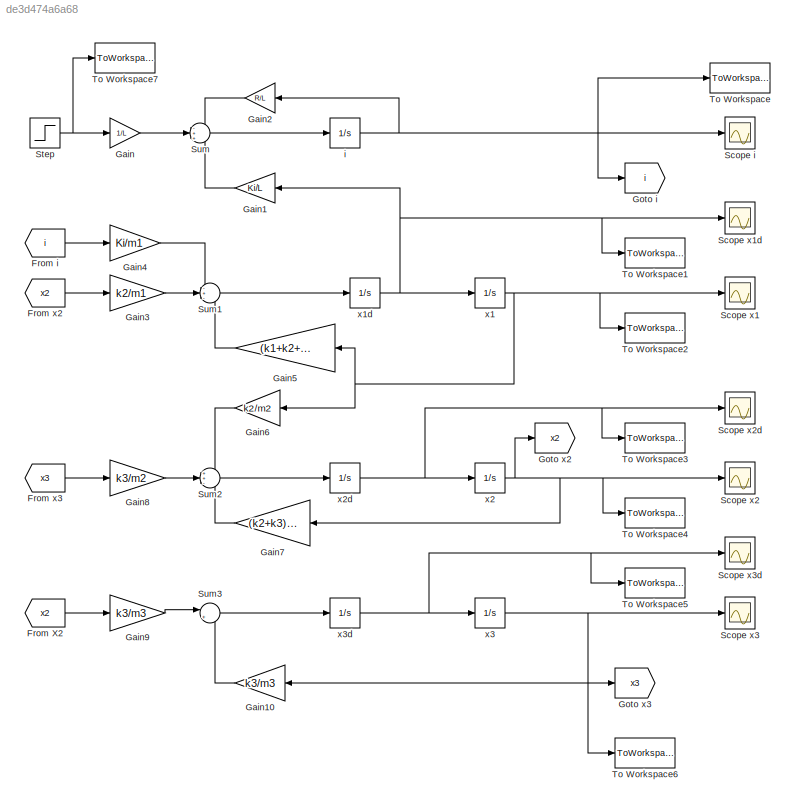
MODEL slx_de3d474a6a68
KIND model
CONFIG AbsTol = auto
CONFIG EnableMultiTasking = on
CONFIG FixedStep = auto
CONFIG MaxStep = 0.01
CONFIG MinStep = auto
CONFIG RelTol = 1e-3
CONFIG SampleTimeConstraint = Unconstrained
CONFIG Solver = ode45
CONFIG SolverName = ode45
CONFIG StartTime = 0.0
CONFIG StopTime = 5
BLOCK [From] From X2
  GotoTag = x2
BLOCK [From] From i
  GotoTag = i
BLOCK [From] From x2
  GotoTag = x2
BLOCK [From] From x3
  GotoTag = x3
BLOCK [Gain] Gain
  Gain = 1/L
BLOCK [Gain] Gain1
  Gain = Ki/L
BLOCK [Gain] Gain10
  Gain = k3/m3
BLOCK [Gain] Gain2
  Gain = R/L
BLOCK [Gain] Gain3
  Gain = k2/m1
BLOCK [Gain] Gain4
  Gain = Ki/m1
BLOCK [Gain] Gain5
  Gain = (k1+k2+Ks)/m1
BLOCK [Gain] Gain6
  Gain = k2/m2
BLOCK [Gain] Gain7
  Gain = (k2+k3)/m2
BLOCK [Gain] Gain8
  Gain = k3/m2
BLOCK [Gain] Gain9
  Gain = k3/m3
BLOCK [Goto] Goto i
  GotoTag = i
BLOCK [Goto] Goto x2
  GotoTag = x2
BLOCK [Goto] Goto x3
  GotoTag = x3
BLOCK [Scope] Scope i
  Floating = off
  NumInputPorts = 1
  Ports = [1]
  ScopeSpecificationString = Simulink.scopes.TimeScopeBlockCfg('CurrentConfiguration', extmgr.ConfigurationSet(extmgr.Configuration('Core','General UI',true),extmgr.Configuration('Core','Source UI',true),extmgr.Configuration('Sources','WiredSimulink',true,'DataLoggingSaveFormat','StructureWithTime','DataLoggingLimitDataPoints',true,'DataLoggingDecimation','1','DataLoggingDecimateData',true),extmgr.Configuration('Visuals','Tim...<+1639ch>
BLOCK [Scope] Scope x1
  Floating = off
  NumInputPorts = 1
  Ports = [1]
  ScopeSpecificationString = C++SS(StrPVP('Location','[188, 390, 512, 629]'),StrPVP('Open','off'),MxPVP('AxesTitles',54,'struct(''axes1'',''%<SignalLabel>'')'),MxPVP('ScopeGraphics',57,'struct(''FigureColor'',''[0.5 0.5 0.5]'',''AxesColor'',''[0 0 0]'',''AxesTickColor'',''[1 1 1]'',''LineColors'',''[1 1 0;1 0 1;0 1 1;1 0 0;0 1 0;0 0 1]'',''LineStyles'',''-|-|-|-|-|-'',''LineWidths'',''[0.5 0.5 0.5 0.5 0.5 0.5]'',''MarkerStyle...<+271ch>  <repeated x3 — deduplicated; at blocks: Scope x1, Scope x2, Scope x2d>
BLOCK [Scope] Scope x1d
  Floating = off
  NumInputPorts = 1
  Ports = [1]
  ScopeSpecificationString = C++SS(StrPVP('Location','[188, 390, 512, 629]'),StrPVP('Open','off'),StrPVP('ZoomMode','xonly'),MxPVP('AxesTitles',54,'struct(''axes1'',''%<SignalLabel>'')'),MxPVP('ScopeGraphics',57,'struct(''FigureColor'',''[0.5 0.5 0.5]'',''AxesColor'',''[0 0 0]'',''AxesTickColor'',''[1 1 1]'',''LineColors'',''[1 1 0;1 0 1;0 1 1;1 0 0;0 1 0;0 0 1]'',''LineStyles'',''-|-|-|-|-|-'',''LineWidths'',''[0.5 0.5 0.5 0...<+298ch>
BLOCK [Scope] Scope x2
  Floating = off
  NumInputPorts = 1
  Ports = [1]
BLOCK [Scope] Scope x2d
  Floating = off
  NumInputPorts = 1
  Ports = [1]
BLOCK [Scope] Scope x3
  Floating = off
  NumInputPorts = 1
  Ports = [1]
  ScopeSpecificationString = Simulink.scopes.TimeScopeBlockCfg('CurrentConfiguration', extmgr.ConfigurationSet(extmgr.Configuration('Core','General UI',true),extmgr.Configuration('Core','Source UI',true),extmgr.Configuration('Sources','WiredSimulink',true,'DataLoggingVariableName','ScopeData3','DataLoggingSaveFormat','StructureWithTime','DataLoggingLimitDataPoints',true,'DataLoggingDecimation','1','DataLoggingDecimateData',tr...<+911ch>
BLOCK [Scope] Scope x3d
  Floating = off
  NumInputPorts = 1
  Ports = [1]
  ScopeSpecificationString = C++SS(StrPVP('Location','[188, 390, 512, 629]'),StrPVP('Open','off'),StrPVP('ZoomMode','yonly'),MxPVP('AxesTitles',54,'struct(''axes1'',''%<SignalLabel>'')'),MxPVP('ScopeGraphics',57,'struct(''FigureColor'',''[0.5 0.5 0.5]'',''AxesColor'',''[0 0 0]'',''AxesTickColor'',''[1 1 1]'',''LineColors'',''[1 1 0;1 0 1;0 1 1;1 0 0;0 1 0;0 0 1]'',''LineStyles'',''-|-|-|-|-|-'',''LineWidths'',''[0.5 0.5 0.5 0...<+298ch>
BLOCK [Step] Step
  After = u_0
  SampleTime = 0
BLOCK [Sum] Sum
  Inputs = -++
  Ports = [3, 1]
BLOCK [Sum] Sum1
  Inputs = -+-
  Ports = [3, 1]
BLOCK [Sum] Sum2
  Inputs = ++-
  Ports = [3, 1]
BLOCK [Sum] Sum3
  Inputs = |+-
  Ports = [2, 1]
BLOCK [ToWorkspace] To Workspace
  FixptAsFi = on
  MaxDataPoints = inf
  Ports = [1]
  SampleTime = -1
  SaveFormat = Structure With Time
  VariableName = i
BLOCK [ToWorkspace] To Workspace1
  FixptAsFi = on
  MaxDataPoints = inf
  Ports = [1]
  SampleTime = -1
  SaveFormat = Structure With Time
  VariableName = x1d
BLOCK [ToWorkspace] To Workspace2
  FixptAsFi = on
  MaxDataPoints = inf
  Ports = [1]
  SampleTime = -1
  SaveFormat = Structure With Time
  VariableName = x1
BLOCK [ToWorkspace] To Workspace3
  FixptAsFi = on
  MaxDataPoints = inf
  Ports = [1]
  SampleTime = -1
  SaveFormat = Structure With Time
  VariableName = x2d
BLOCK [ToWorkspace] To Workspace4
  FixptAsFi = on
  MaxDataPoints = inf
  Ports = [1]
  SampleTime = -1
  SaveFormat = Structure With Time
  VariableName = x2
BLOCK [ToWorkspace] To Workspace5
  FixptAsFi = on
  MaxDataPoints = inf
  Ports = [1]
  SampleTime = -1
  SaveFormat = Structure With Time
  VariableName = x3d
BLOCK [ToWorkspace] To Workspace6
  FixptAsFi = on
  MaxDataPoints = inf
  Ports = [1]
  SampleTime = -1
  SaveFormat = Structure With Time
  VariableName = x3
BLOCK [ToWorkspace] To Workspace7
  FixptAsFi = on
  MaxDataPoints = inf
  Ports = [1]
  SampleTime = -1
  SaveFormat = Structure With Time
  VariableName = u
BLOCK [Integrator] i
  InitialCondition = x_0(1)
  Ports = [1, 1]
BLOCK [Integrator] x1
  InitialCondition = x_0(2)
  Ports = [1, 1]
BLOCK [Integrator] x1d
  InitialCondition = x_0(3)
  Ports = [1, 1]
BLOCK [Integrator] x2
  InitialCondition = x_0(4)
  Ports = [1, 1]
BLOCK [Integrator] x2d
  InitialCondition = x_0(5)
  Ports = [1, 1]
BLOCK [Integrator] x3
  InitialCondition = x_0(6)
  Ports = [1, 1]
BLOCK [Integrator] x3d
  InitialCondition = x_0(7)
  Ports = [1, 1]
LINE From X2:1 -> Gain9:1
LINE From i:1 -> Gain4:1
LINE From x2:1 -> Gain3:1
LINE From x3:1 -> Gain8:1
LINE Gain10:1 -> Sum3:2
LINE Gain1:1 -> Sum:3
LINE Gain2:1 -> Sum:1
LINE Gain3:1 -> Sum1:2
LINE Gain4:1 -> Sum1:1
LINE Gain5:1 -> Sum1:3
LINE Gain6:1 -> Sum2:1
LINE Gain7:1 -> Sum2:3
LINE Gain8:1 -> Sum2:2
LINE Gain9:1 -> Sum3:1
LINE Gain:1 -> Sum:2
NET Step:1 -> Gain:1, To Workspace7:1
LINE Sum1:1 -> x1d:1
LINE Sum2:1 -> x2d:1
LINE Sum3:1 -> x3d:1
LINE Sum:1 -> i:1
NET i:1 -> Gain2:1, Goto i:1, Scope i:1, To Workspace:1
NET x1:1 -> Gain5:1, Gain6:1, Scope x1:1, To Workspace2:1
NET x1d:1 -> Gain1:1, Scope x1d:1, To Workspace1:1, x1:1
NET x2:1 -> Gain7:1, Goto x2:1, Scope x2:1, To Workspace4:1
NET x2d:1 -> Scope x2d:1, To Workspace3:1, x2:1
NET x3:1 -> Gain10:1, Goto x3:1, Scope x3:1, To Workspace6:1
NET x3d:1 -> Scope x3d:1, To Workspace5:1, x3:1
note: NET lines group one-source signal fan-out (src -> all destinations, sorted); 1:1 wires keep LINE
